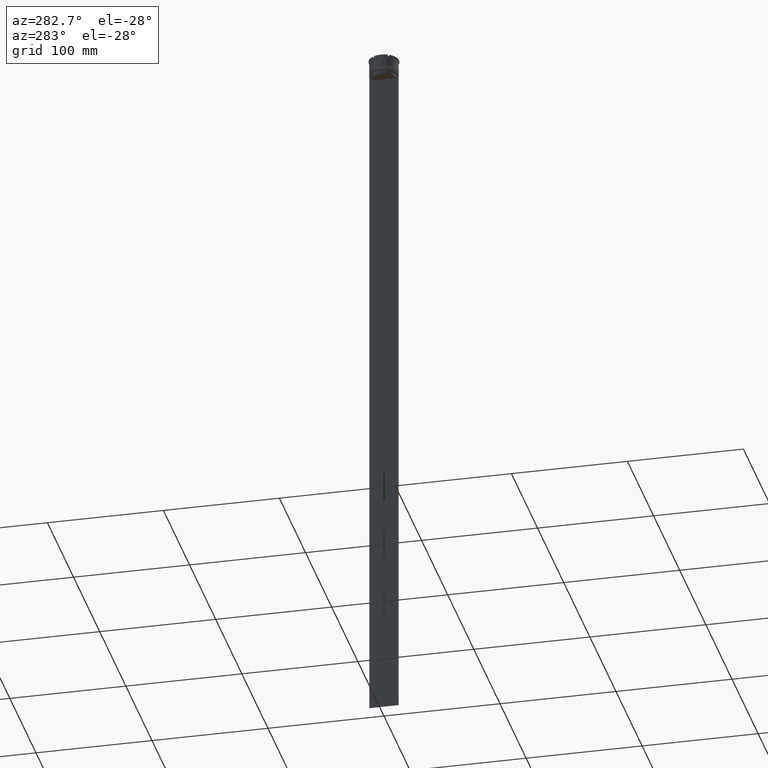
[diagram: clean part render]
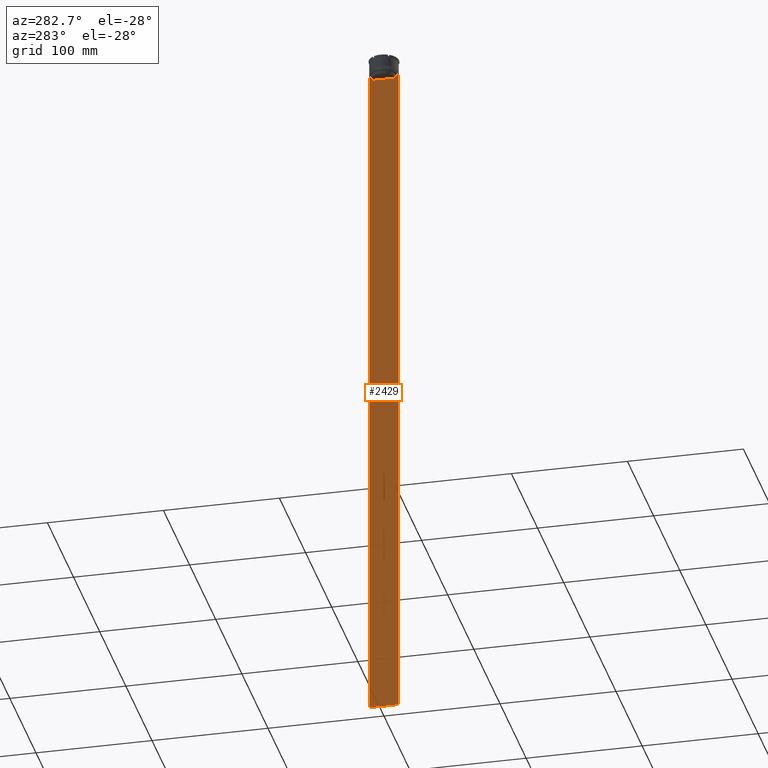
[diagram: same view with one face highlighted and labeled with its STEP entity id]
A machine part, auxiliary view. The second image highlights one B-rep face of the part: STEP entity #2429.
In plain terms, the highlighted planar face has unit normal (-1, 0, 0).
Its self-contained STEP definition (entity closure, byte-faithful):
#1 = ORIENTED_EDGE ( 'NONE', *, *, #967, .F. ) ;
#13 = LINE ( 'NONE', #881, #326 ) ;
#87 = DIRECTION ( 'NONE',  ( 0.000000000000000000, 1.000000000000000000, 0.000000000000000000 ) ) ;
#103 = DIRECTION ( 'NONE',  ( 0.000000000000000000, 0.000000000000000000, -1.000000000000000000 ) ) ;
#121 = DIRECTION ( 'NONE',  ( -0.000000000000000000, -0.000000000000000000, 1.000000000000000000 ) ) ;
#127 = EDGE_CURVE ( 'NONE', #1487, #380, #2017, .T. ) ;
#134 = DIRECTION ( 'NONE',  ( 0.000000000000000000, -1.000000000000000000, 0.000000000000000000 ) ) ;
#149 = VERTEX_POINT ( 'NONE', #2224 ) ;
#153 = LINE ( 'NONE', #1903, #747 ) ;
#167 = DIRECTION ( 'NONE',  ( -1.000000000000000000, 0.000000000000000000, 0.000000000000000000 ) ) ;
#176 = EDGE_LOOP ( 'NONE', ( #1, #1843, #2800, #1984, #2425, #1538, #255, #558, #1187, #1674, #1021, #263 ) ) ;
#225 = DIRECTION ( 'NONE',  ( 0.000000000000000000, -1.000000000000000000, 0.000000000000000000 ) ) ;
#255 = ORIENTED_EDGE ( 'NONE', *, *, #1577, .F. ) ;
#260 = LINE ( 'NONE', #2729, #612 ) ;
#263 = ORIENTED_EDGE ( 'NONE', *, *, #2441, .F. ) ;
#278 = VECTOR ( 'NONE', #87, 1000.000000000000000 ) ;
#295 = CARTESIAN_POINT ( 'NONE',  ( -0.5000000000000000000, -12.49999999999999289, -614.0000000000000000 ) ) ;
#326 = VECTOR ( 'NONE', #2439, 1000.000000000000000 ) ;
#380 = VERTEX_POINT ( 'NONE', #2079 ) ;
#383 = LINE ( 'NONE', #1277, #1536 ) ;
#407 = VERTEX_POINT ( 'NONE', #1181 ) ;
#430 = CARTESIAN_POINT ( 'NONE',  ( -0.5000000000000000000, 10.88852607105296322, -14.50000000000000000 ) ) ;
#455 = CARTESIAN_POINT ( 'NONE',  ( -0.5000000000000000000, -10.88852607105296322, -14.50000000000000000 ) ) ;
#474 = CARTESIAN_POINT ( 'NONE',  ( -0.5000000000000000000, 11.05536450345590538, -14.33333719074559376 ) ) ;
#518 = B_SPLINE_CURVE_WITH_KNOTS ( 'NONE', 3,
 ( #1103, #1347, #474, #430 ),
 .UNSPECIFIED., .F., .F.,
 ( 4, 4 ),
 ( 0.01935560801904634073, 0.02006307108468586772 ),
 .UNSPECIFIED. ) ;
#555 = EDGE_CURVE ( 'NONE', #407, #1872, #1053, .T. ) ;
#558 = ORIENTED_EDGE ( 'NONE', *, *, #1340, .F. ) ;
#612 = VECTOR ( 'NONE', #1638, 1000.000000000000000 ) ;
#657 = VECTOR ( 'NONE', #121, 1000.000000000000000 ) ;
#674 = CARTESIAN_POINT ( 'NONE',  ( -0.5000000000000000000, 10.90000000000000213, -17.00000000000000000 ) ) ;
#726 = VERTEX_POINT ( 'NONE', #858 ) ;
#727 = CARTESIAN_POINT ( 'NONE',  ( -0.5000000000000000000, -12.49999999999999289, -614.0000000000000000 ) ) ;
#747 = VECTOR ( 'NONE', #1875, 1000.000000000000000 ) ;
#854 = VECTOR ( 'NONE', #1566, 1000.000000000000000 ) ;
#858 = CARTESIAN_POINT ( 'NONE',  ( -0.5000000000000000000, -10.88852607105296322, -14.50000000000000000 ) ) ;
#881 = CARTESIAN_POINT ( 'NONE',  ( -0.5000000000000000000, -12.49999999999999289, 11.01999200639360765 ) ) ;
#915 = EDGE_CURVE ( 'NONE', #726, #2164, #1985, .T. ) ;
#967 = EDGE_CURVE ( 'NONE', #1627, #1217, #518, .T. ) ;
#997 = CARTESIAN_POINT ( 'NONE',  ( -0.5000000000000000000, -12.49999999999999289, -14.00000000000000178 ) ) ;
#1021 = ORIENTED_EDGE ( 'NONE', *, *, #127, .F. ) ;
#1053 = LINE ( 'NONE', #2108, #2647 ) ;
#1072 = VERTEX_POINT ( 'NONE', #727 ) ;
#1095 = EDGE_CURVE ( 'NONE', #1072, #1872, #2287, .T. ) ;
#1103 = CARTESIAN_POINT ( 'NONE',  ( -0.5000000000000000000, 11.38902980942626719, -14.00000000000000178 ) ) ;
#1181 = CARTESIAN_POINT ( 'NONE',  ( -0.5000000000000000000, 12.50000000000000711, -14.00000000000000178 ) ) ;
#1187 = ORIENTED_EDGE ( 'NONE', *, *, #915, .F. ) ;
#1217 = VERTEX_POINT ( 'NONE', #2815 ) ;
#1249 = CARTESIAN_POINT ( 'NONE',  ( -0.5000000000000000000, 12.38991525394746773, -14.00000000000000178 ) ) ;
#1262 = DIRECTION ( 'NONE',  ( 0.000000000000000000, 0.000000000000000000, 1.000000000000000000 ) ) ;
#1277 = CARTESIAN_POINT ( 'NONE',  ( -0.5000000000000000000, 10.88852607105296322, 0.000000000000000000 ) ) ;
#1310 = VERTEX_POINT ( 'NONE', #2873 ) ;
#1322 = LINE ( 'NONE', #1553, #2050 ) ;
#1340 = EDGE_CURVE ( 'NONE', #2164, #149, #1322, .T. ) ;
#1347 = CARTESIAN_POINT ( 'NONE',  ( -0.5000000000000000000, 11.22219891375843304, -14.16667035472756808 ) ) ;
#1376 = CARTESIAN_POINT ( 'NONE',  ( -0.5000000000000000000, -11.22219891450652973, -14.16667035398018903 ) ) ;
#1487 = VERTEX_POINT ( 'NONE', #1748 ) ;
#1536 = VECTOR ( 'NONE', #103, 1000.000000000000000 ) ;
#1538 = ORIENTED_EDGE ( 'NONE', *, *, #1818, .F. ) ;
#1540 = CARTESIAN_POINT ( 'NONE',  ( -0.5000000000000000000, 12.50000000000000711, -614.0000000000000000 ) ) ;
#1553 = CARTESIAN_POINT ( 'NONE',  ( -0.5000000000000000000, -12.49999999999999289, -14.00000000000000178 ) ) ;
#1566 = DIRECTION ( 'NONE',  ( 0.000000000000000000, -1.000000000000000000, 0.000000000000000000 ) ) ;
#1577 = EDGE_CURVE ( 'NONE', #149, #1310, #260, .T. ) ;
#1579 = CARTESIAN_POINT ( 'NONE',  ( -0.5000000000000000000, -11.05536450423839234, -14.33333718996393102 ) ) ;
#1627 = VERTEX_POINT ( 'NONE', #2702 ) ;
#1638 = DIRECTION ( 'NONE',  ( 0.000000000000000000, -1.000000000000000000, 0.000000000000000000 ) ) ;
#1663 = CARTESIAN_POINT ( 'NONE',  ( -0.5000000000000000000, -11.38902980942626719, -14.00000000000000178 ) ) ;
#1674 = ORIENTED_EDGE ( 'NONE', *, *, #1676, .F. ) ;
#1676 = EDGE_CURVE ( 'NONE', #380, #726, #2538, .T. ) ;
#1748 = CARTESIAN_POINT ( 'NONE',  ( -0.5000000000000000000, 10.88852607105296144, -17.00000000000000000 ) ) ;
#1818 = EDGE_CURVE ( 'NONE', #1310, #1072, #13, .T. ) ;
#1843 = ORIENTED_EDGE ( 'NONE', *, *, #2048, .F. ) ;
#1872 = VERTEX_POINT ( 'NONE', #1540 ) ;
#1875 = DIRECTION ( 'NONE',  ( 0.000000000000000000, -1.000000000000000000, 0.000000000000000000 ) ) ;
#1903 = CARTESIAN_POINT ( 'NONE',  ( -0.5000000000000000000, -12.49999999999999289, -14.00000000000000178 ) ) ;
#1908 = DIRECTION ( 'NONE',  ( 0.000000000000000000, 0.000000000000000000, -1.000000000000000000 ) ) ;
#1915 = FACE_OUTER_BOUND ( 'NONE', #176, .T. ) ;
#1936 = CARTESIAN_POINT ( 'NONE',  ( -0.5000000000000000000, -10.88852607105296322, 0.000000000000000000 ) ) ;
#1984 = ORIENTED_EDGE ( 'NONE', *, *, #555, .T. ) ;
#1985 = B_SPLINE_CURVE_WITH_KNOTS ( 'NONE', 3,
 ( #455, #1579, #1376, #2672 ),
 .UNSPECIFIED., .F., .F.,
 ( 4, 4 ),
 ( 0.05041323384703226551, 0.05112713601261605068 ),
 .UNSPECIFIED. ) ;
#2017 = LINE ( 'NONE', #674, #854 ) ;
#2048 = EDGE_CURVE ( 'NONE', #2213, #1627, #2753, .T. ) ;
#2050 = VECTOR ( 'NONE', #225, 1000.000000000000000 ) ;
#2079 = CARTESIAN_POINT ( 'NONE',  ( -0.5000000000000000000, -10.88852607105296144, -17.00000000000000000 ) ) ;
#2108 = CARTESIAN_POINT ( 'NONE',  ( -0.5000000000000000000, 12.50000000000000711, 11.01999200639360765 ) ) ;
#2164 = VERTEX_POINT ( 'NONE', #1663 ) ;
#2211 = EDGE_CURVE ( 'NONE', #407, #2213, #153, .T. ) ;
#2213 = VERTEX_POINT ( 'NONE', #1249 ) ;
#2224 = CARTESIAN_POINT ( 'NONE',  ( -0.5000000000000000000, -12.38991525394746773, -14.00000000000000178 ) ) ;
#2287 = LINE ( 'NONE', #295, #278 ) ;
#2358 = CARTESIAN_POINT ( 'NONE',  ( -0.5000000000000000000, -12.49999999999999289, 11.01999200639360765 ) ) ;
#2425 = ORIENTED_EDGE ( 'NONE', *, *, #1095, .F. ) ;
#2429 = ADVANCED_FACE ( 'NONE', ( #1915 ), #2580, .T. ) ;
#2439 = DIRECTION ( 'NONE',  ( 0.000000000000000000, 0.000000000000000000, -1.000000000000000000 ) ) ;
#2441 = EDGE_CURVE ( 'NONE', #1217, #1487, #383, .T. ) ;
#2502 = AXIS2_PLACEMENT_3D ( 'NONE', #2358, #167, #1262 ) ;
#2538 = LINE ( 'NONE', #1936, #657 ) ;
#2580 = PLANE ( 'NONE',  #2502 ) ;
#2647 = VECTOR ( 'NONE', #1908, 1000.000000000000000 ) ;
#2659 = VECTOR ( 'NONE', #134, 1000.000000000000000 ) ;
#2672 = CARTESIAN_POINT ( 'NONE',  ( -0.5000000000000000000, -11.38902980942626719, -14.00000000000000178 ) ) ;
#2702 = CARTESIAN_POINT ( 'NONE',  ( -0.5000000000000000000, 11.38902980942626719, -14.00000000000000178 ) ) ;
#2729 = CARTESIAN_POINT ( 'NONE',  ( -0.5000000000000000000, -12.49999999999999289, -14.00000000000000178 ) ) ;
#2753 = LINE ( 'NONE', #997, #2659 ) ;
#2800 = ORIENTED_EDGE ( 'NONE', *, *, #2211, .F. ) ;
#2815 = CARTESIAN_POINT ( 'NONE',  ( -0.5000000000000000000, 10.88852607105296322, -14.50000000000000000 ) ) ;
#2873 = CARTESIAN_POINT ( 'NONE',  ( -0.5000000000000000000, -12.49999999999999289, -14.00000000000000178 ) ) ;